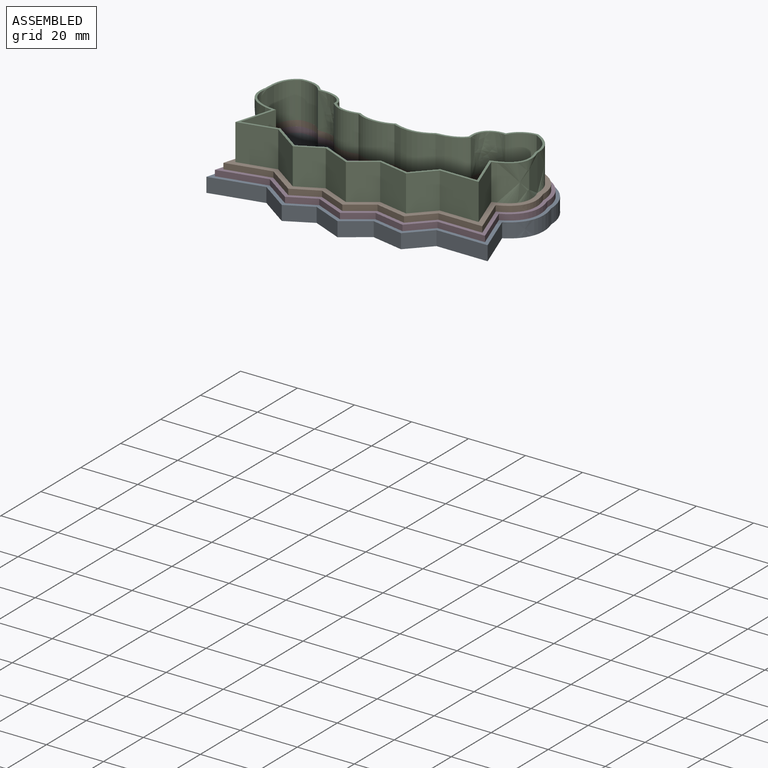
[diagram: assembled view]
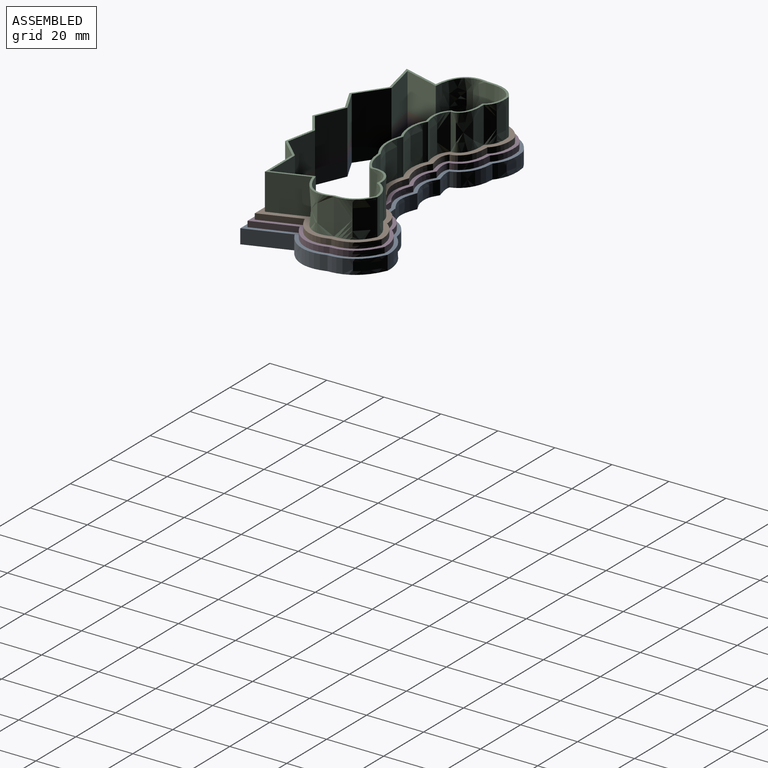
[diagram: assembled view, second angle]
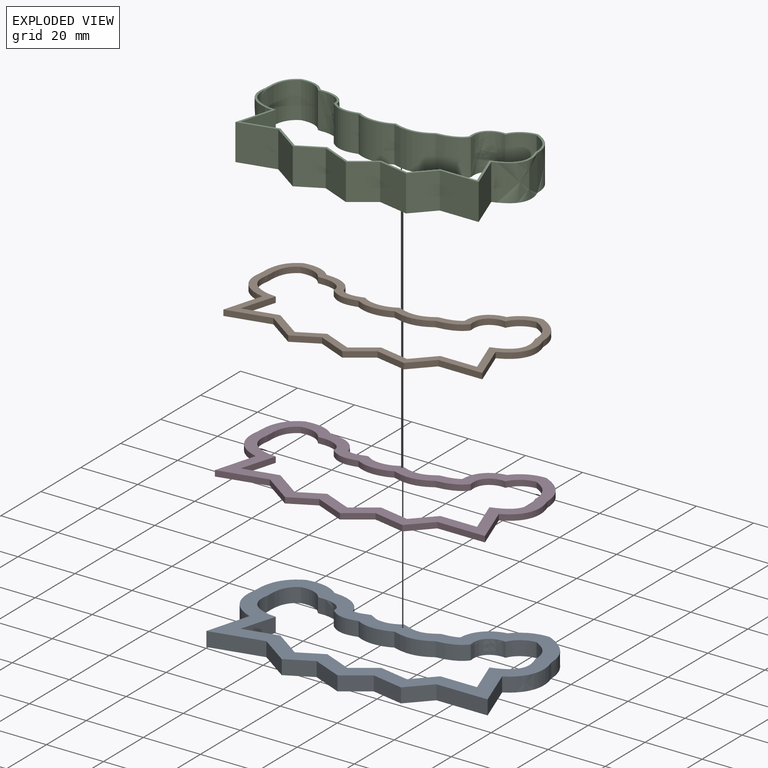
[diagram: exploded view]
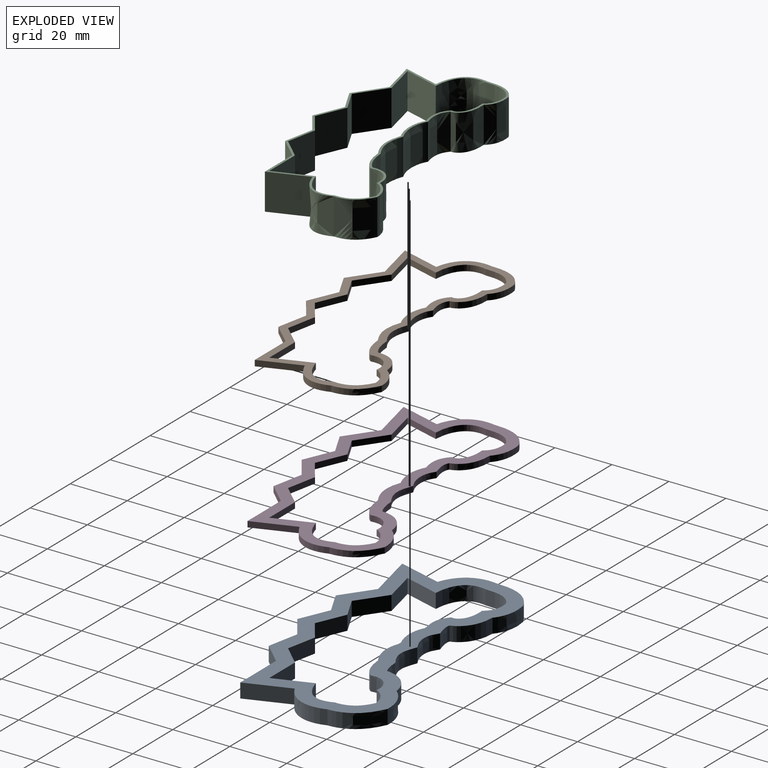
[diagram: exploded view, second angle]
ASSEMBLY  parts=4 mates=3
PART A: 46 faces, bbox 101.8x59.1x7.7 mm
  f0: plane 101.81x59.1mm, normal (0,0,1), area 1433.5mm2, adj f2,f3,f4,f5,f6,f7,f8,f9
  f1: plane 101.81x59.1mm, normal (0,0,-1), area 1433.5mm2, adj f2,f3,f4,f5,f6,f7,f8,f9
  f2: extruded ~15.41x5.08mm, area 81.3mm2, adj f0,f1,f3,f23
  f3: plane 18.12x5.08mm, normal (0.23,-0.97,0), area 94.5mm2, adj f0,f1,f2,f4
  f4: plane 10.59x7.46mm, normal (-0.58,-0.82,0), area 65.8mm2, adj f0,f1,f3,f5
  f5: plane 9x5.08mm, normal (0.46,-0.89,0), area 51.4mm2, adj f0,f1,f4,f6
  f6: plane 10.47x5.08mm, normal (-0.4,-0.92,0), area 57.9mm2, adj f0,f1,f5,f7
  f7: plane 8.51x5.97mm, normal (0.57,-0.82,0), area 52.8mm2, adj f0,f1,f6,f8
  f8: plane 11.12x5.08mm, normal (-0.2,-0.98,0), area 57.6mm2, adj f0,f1,f7,f9
  f9: plane 7.59x7.14mm, normal (0.73,-0.69,0), area 52.9mm2, adj f0,f1,f8,f10
  f10: plane 17.94x5.08mm, normal (0,-1,0), area 91.1mm2, adj f0,f1,f9,f11
  f11: plane 15.2x5.56mm, normal (0.94,0.34,0), area 82.2mm2, adj f0,f1,f10,f12
  f12: extruded ~15.83x7.08mm, area 95.2mm2, adj f0,f1,f11,f13
  f13: extruded ~13.95x10.21mm, area 93.2mm2, adj f0,f1,f12,f14
  f14: extruded ~11.48x5.08mm, area 64.8mm2, adj f0,f1,f13,f15
  f15: extruded ~10.07x9.54mm, area 76.7mm2, adj f0,f1,f14,f16
  f16: extruded ~5.93x5.08mm, area 30.9mm2, adj f0,f1,f15,f17
  f17: extruded ~12.22x5.08mm, area 65.3mm2, adj f0,f1,f16,f18
  f18: extruded ~11.49x5.08mm, area 62.2mm2, adj f0,f1,f17,f19
  f19: extruded ~5.94x5.08mm, area 30.7mm2, adj f0,f1,f18,f20
  f20: extruded ~11.42x7.03mm, area 72.8mm2, adj f0,f1,f19,f21
  f21: extruded ~11.67x5.08mm, area 63.1mm2, adj f0,f1,f20,f22
  f22: extruded ~14.8x8.11mm, area 91.6mm2, adj f0,f1,f21,f23
  f23: extruded ~14.72x9.12mm, area 96.1mm2, adj f0,f1,f2,f22
  f24: extruded ~12.45x5.08mm, area 65.9mm2, adj f0,f1,f25,f45
  f25: plane 12.03x5.08mm, normal (-0.23,0.97,0), area 62.7mm2, adj f0,f1,f24,f26
  f26: plane 9.93x6.99mm, normal (0.58,0.82,0), area 61.7mm2, adj f0,f1,f25,f27
  f27: plane 8.39x5.08mm, normal (-0.46,0.89,0), area 48mm2, adj f0,f1,f26,f28
  f28: plane 10.07x5.08mm, normal (0.4,0.92,0), area 55.7mm2, adj f0,f1,f27,f29
  f29: plane 7.97x5.59mm, normal (-0.57,0.82,0), area 49.5mm2, adj f0,f1,f28,f30
  f30: plane 10.49x5.08mm, normal (0.2,0.98,0), area 54.3mm2, adj f0,f1,f29,f31
  f31: plane 7.13x6.71mm, normal (-0.73,0.69,0), area 49.8mm2, adj f0,f1,f30,f32
  f32: plane 12.87x5.08mm, normal (0,1,0), area 65.4mm2, adj f0,f1,f31,f33
  f33: plane 13.01x5.08mm, normal (-0.94,-0.34,0), area 70.4mm2, adj f0,f1,f32,f34
  f34: extruded ~12.03x8.46mm, area 85mm2, adj f0,f1,f33,f35
  f35: extruded ~9.79x6.3mm, area 63.2mm2, adj f0,f1,f34,f36
  f36: extruded ~7.55x5.08mm, area 48.2mm2, adj f0,f1,f35,f37
  f37: extruded ~7.25x7.24mm, area 61.2mm2, adj f0,f1,f36,f38
  f38: extruded ~9.51x5.08mm, area 54.1mm2, adj f0,f1,f37,f39
  f39: extruded ~13.43x5.08mm, area 71.4mm2, adj f0,f1,f38,f40
  f40: extruded ~12.59x5.08mm, area 66.5mm2, adj f0,f1,f39,f41
  f41: extruded ~10.07x5.08mm, area 55.1mm2, adj f0,f1,f40,f42
  f42: extruded ~8.91x5.08mm, area 57.6mm2, adj f0,f1,f41,f43
  f43: extruded ~7.83x5.08mm, area 44.8mm2, adj f0,f1,f42,f44
  f44: extruded ~10.35x5.08mm, area 61.2mm2, adj f0,f1,f43,f45
  f45: extruded ~10.47x10.35mm, area 86.6mm2, adj f0,f1,f24,f44
PART B: 46 faces, bbox 96.1x52.9x4 mm
  f0: plane 96.06x52.93mm, normal (0,0,1), area 692.5mm2, adj f2,f3,f4,f5,f6,f7,f8,f9
  f1: plane 96.06x52.93mm, normal (0,0,-1), area 692.5mm2, adj f2,f3,f4,f5,f6,f7,f8,f9
  f2: extruded ~13.74x3.96mm, area 29.1mm2, adj f0,f1,f3,f23
  f3: plane 15.08x3.51mm, normal (0.23,-0.97,0), area 31.5mm2, adj f0,f1,f2,f4
  f4: plane 10.26x7.23mm, normal (-0.58,-0.82,0), area 25.5mm2, adj f0,f1,f3,f5
  f5: plane 8.69x4.49mm, normal (0.46,-0.89,0), area 19.9mm2, adj f0,f1,f4,f6
  f6: plane 10.27x4.42mm, normal (-0.4,-0.92,0), area 22.7mm2, adj f0,f1,f5,f7
  f7: plane 8.24x5.78mm, normal (0.57,-0.82,0), area 20.5mm2, adj f0,f1,f6,f8
  f8: plane 10.81x2.16mm, normal (-0.2,-0.98,0), area 22.4mm2, adj f0,f1,f7,f9
  f9: plane 7.36x6.93mm, normal (0.73,-0.69,0), area 20.5mm2, adj f0,f1,f8,f10
  f10: plane 15.4x2.03mm, normal (0,-1,0), area 31.3mm2, adj f0,f1,f9,f11
  f11: plane 13.98x5.11mm, normal (0.94,0.34,0), area 30.2mm2, adj f0,f1,f10,f12
  f12: extruded ~14.06x7.72mm, area 36mm2, adj f0,f1,f11,f13
  f13: extruded ~11.87x8.26mm, area 31.3mm2, adj f0,f1,f12,f14
  f14: extruded ~9.56x4.78mm, area 22.7mm2, adj f0,f1,f13,f15
  f15: extruded ~8.95x8.36mm, area 28mm2, adj f0,f1,f14,f16
  f16: extruded ~7.67x2.4mm, area 16.7mm2, adj f0,f1,f15,f17
  f17: extruded ~12.82x2.42mm, area 27.4mm2, adj f0,f1,f16,f18
  f18: extruded ~12.04x2.03mm, area 25.8mm2, adj f0,f1,f17,f19
  f19: extruded ~7.82x2.03mm, area 16.5mm2, adj f0,f1,f18,f20
  f20: extruded ~10.21x6.12mm, area 26.5mm2, adj f0,f1,f19,f21
  f21: extruded ~9.84x2.88mm, area 21.6mm2, adj f0,f1,f20,f22
  f22: extruded ~12.57x6.36mm, area 30.5mm2, adj f0,f1,f21,f23
  f23: extruded ~12.73x9.75mm, area 36.5mm2, adj f0,f1,f2,f22
  f24: extruded ~12.45x3.64mm, area 26.4mm2, adj f0,f1,f25,f45
  f25: plane 12.03x2.8mm, normal (-0.23,0.97,0), area 25.1mm2, adj f0,f1,f24,f26
  f26: plane 9.93x6.99mm, normal (0.58,0.82,0), area 24.7mm2, adj f0,f1,f25,f27
  f27: plane 8.39x4.34mm, normal (-0.46,0.89,0), area 19.2mm2, adj f0,f1,f26,f28
  f28: plane 10.07x4.34mm, normal (0.4,0.92,0), area 22.3mm2, adj f0,f1,f27,f29
  f29: plane 7.97x5.59mm, normal (-0.57,0.82,0), area 19.8mm2, adj f0,f1,f28,f30
  f30: plane 10.49x2.1mm, normal (0.2,0.98,0), area 21.7mm2, adj f0,f1,f29,f31
  f31: plane 7.13x6.71mm, normal (-0.73,0.69,0), area 19.9mm2, adj f0,f1,f30,f32
  f32: plane 12.87x2.03mm, normal (0,1,0), area 26.1mm2, adj f0,f1,f31,f33
  f33: plane 13.01x4.76mm, normal (-0.94,-0.34,0), area 28.1mm2, adj f0,f1,f32,f34
  f34: extruded ~12.03x8.46mm, area 34mm2, adj f0,f1,f33,f35
  f35: extruded ~9.79x6.3mm, area 25.3mm2, adj f0,f1,f34,f36
  f36: extruded ~7.55x4.9mm, area 19.3mm2, adj f0,f1,f35,f37
  f37: extruded ~7.25x7.24mm, area 24.5mm2, adj f0,f1,f36,f38
  f38: extruded ~9.51x4.06mm, area 21.7mm2, adj f0,f1,f37,f39
  f39: extruded ~13.43x2.47mm, area 28.6mm2, adj f0,f1,f38,f40
  f40: extruded ~12.59x2.03mm, area 26.6mm2, adj f0,f1,f39,f41
  f41: extruded ~10.07x2.57mm, area 22mm2, adj f0,f1,f40,f42
  f42: extruded ~8.91x4.67mm, area 23.1mm2, adj f0,f1,f41,f43
  f43: extruded ~7.83x2.93mm, area 17.9mm2, adj f0,f1,f42,f44
  f44: extruded ~10.35x4.62mm, area 24.5mm2, adj f0,f1,f43,f45
  f45: extruded ~10.47x10.35mm, area 34.6mm2, adj f0,f1,f24,f44
PART C: 46 faces, bbox 91.9x48.3x13.9 mm
  f0: plane 91.93x48.29mm, normal (0,0,1), area 202.8mm2, adj f2,f3,f4,f5,f6,f7,f8,f9
  f1: plane 91.93x48.29mm, normal (0,0,-1), area 202.8mm2, adj f2,f3,f4,f5,f6,f7,f8,f9
  f2: extruded ~12.79x12.7mm, area 169.2mm2, adj f0,f1,f3,f23
  f3: plane 12.94x12.7mm, normal (0.23,-0.97,0), area 168.8mm2, adj f0,f1,f2,f4
  f4: plane 12.7x10.03mm, normal (-0.58,-0.82,0), area 155.8mm2, adj f0,f1,f3,f5
  f5: plane 12.7x8.48mm, normal (0.46,-0.89,0), area 121.3mm2, adj f0,f1,f4,f6
  f6: plane 12.7x10.13mm, normal (-0.4,-0.92,0), area 140.1mm2, adj f0,f1,f5,f7
  f7: plane 12.7x8.05mm, normal (0.57,-0.82,0), area 125mm2, adj f0,f1,f6,f8
  f8: plane 12.7x10.58mm, normal (-0.2,-0.98,0), area 137.1mm2, adj f0,f1,f7,f9
  f9: plane 12.7x7.2mm, normal (0.73,-0.69,0), area 125.6mm2, adj f0,f1,f8,f10
  f10: plane 13.63x12.7mm, normal (0,-1,0), area 173.1mm2, adj f0,f1,f9,f11
  f11: plane 13.27x12.7mm, normal (0.94,0.34,0), area 179.5mm2, adj f0,f1,f10,f12
  f12: extruded ~12.7x12.66mm, area 216.4mm2, adj f0,f1,f11,f13
  f13: extruded ~12.7x10.42mm, area 169.2mm2, adj f0,f1,f12,f14
  f14: extruded ~12.7x8.17mm, area 126.1mm2, adj f0,f1,f13,f15
  f15: extruded ~12.7x7.81mm, area 159.9mm2, adj f0,f1,f14,f16
  f16: extruded ~12.7x8.95mm, area 125.4mm2, adj f0,f1,f15,f17
  f17: extruded ~13.25x12.7mm, area 176.4mm2, adj f0,f1,f16,f18
  f18: extruded ~12.7x12.42mm, area 164.7mm2, adj f0,f1,f17,f19
  f19: extruded ~12.7x9.33mm, area 126.2mm2, adj f0,f1,f18,f20
  f20: extruded ~12.7x9.28mm, area 151.1mm2, adj f0,f1,f19,f21
  f21: extruded ~12.7x8.47mm, area 119mm2, adj f0,f1,f20,f22
  f22: extruded ~12.7x11.01mm, area 164.4mm2, adj f0,f1,f21,f23
  f23: extruded ~12.7x11.11mm, area 220mm2, adj f0,f1,f2,f22
  f24: extruded ~12.7x12.45mm, area 164.7mm2, adj f0,f1,f25,f45
  f25: plane 12.7x12.03mm, normal (-0.23,0.97,0), area 156.8mm2, adj f0,f1,f24,f26
  f26: plane 12.7x9.93mm, normal (0.58,0.82,0), area 154.3mm2, adj f0,f1,f25,f27
  f27: plane 12.7x8.39mm, normal (-0.46,0.89,0), area 120mm2, adj f0,f1,f26,f28
  f28: plane 12.7x10.07mm, normal (0.4,0.92,0), area 139.2mm2, adj f0,f1,f27,f29
  f29: plane 12.7x7.97mm, normal (-0.57,0.82,0), area 123.7mm2, adj f0,f1,f28,f30
  f30: plane 12.7x10.49mm, normal (0.2,0.98,0), area 135.9mm2, adj f0,f1,f29,f31
  f31: plane 12.7x7.13mm, normal (-0.73,0.69,0), area 124.4mm2, adj f0,f1,f30,f32
  f32: plane 12.87x12.7mm, normal (0,1,0), area 163.4mm2, adj f0,f1,f31,f33
  f33: plane 13.01x12.7mm, normal (-0.94,-0.34,0), area 175.9mm2, adj f0,f1,f32,f34
  f34: extruded ~12.7x12.03mm, area 212.6mm2, adj f0,f1,f33,f35
  f35: extruded ~12.7x9.79mm, area 157.9mm2, adj f0,f1,f34,f36
  f36: extruded ~12.7x7.55mm, area 120.5mm2, adj f0,f1,f35,f37
  f37: extruded ~12.7x7.25mm, area 153.1mm2, adj f0,f1,f36,f38
  f38: extruded ~12.7x9.51mm, area 135.4mm2, adj f0,f1,f37,f39
  f39: extruded ~13.43x12.7mm, area 178.5mm2, adj f0,f1,f38,f40
  f40: extruded ~12.7x12.59mm, area 166.3mm2, adj f0,f1,f39,f41
  f41: extruded ~12.7x10.07mm, area 137.7mm2, adj f0,f1,f40,f42
  f42: extruded ~12.7x8.91mm, area 144.1mm2, adj f0,f1,f41,f43
  f43: extruded ~12.7x7.83mm, area 112mm2, adj f0,f1,f42,f44
  f44: extruded ~12.7x10.35mm, area 153.1mm2, adj f0,f1,f43,f45
  f45: extruded ~12.7x10.47mm, area 216.4mm2, adj f0,f1,f24,f44
PART D: 46 faces, bbox 98.7x55.7x4.1 mm
  f0: plane 98.66x55.73mm, normal (0,0,1), area 1056.8mm2, adj f2,f3,f4,f5,f6,f7,f8,f9
  f1: plane 98.66x55.73mm, normal (0,0,-1), area 1056.8mm2, adj f2,f3,f4,f5,f6,f7,f8,f9
  f2: extruded ~14.54x4.15mm, area 30.7mm2, adj f0,f1,f3,f23
  f3: plane 16.6x3.86mm, normal (0.23,-0.97,0), area 34.6mm2, adj f0,f1,f2,f4
  f4: plane 10.43x7.34mm, normal (-0.58,-0.82,0), area 25.9mm2, adj f0,f1,f3,f5
  f5: plane 8.84x4.57mm, normal (0.46,-0.89,0), area 20.2mm2, adj f0,f1,f4,f6
  f6: plane 10.37x4.46mm, normal (-0.4,-0.92,0), area 22.9mm2, adj f0,f1,f5,f7
  f7: plane 8.38x5.88mm, normal (0.57,-0.82,0), area 20.8mm2, adj f0,f1,f6,f8
  f8: plane 10.96x2.19mm, normal (-0.2,-0.98,0), area 22.7mm2, adj f0,f1,f7,f9
  f9: plane 7.47x7.03mm, normal (0.73,-0.69,0), area 20.9mm2, adj f0,f1,f8,f10
  f10: plane 16.67x2.03mm, normal (0,-1,0), area 33.9mm2, adj f0,f1,f9,f11
  f11: plane 14.56x5.32mm, normal (0.94,0.34,0), area 31.5mm2, adj f0,f1,f10,f12
  f12: extruded ~14.98x7.39mm, area 37.1mm2, adj f0,f1,f11,f13
  f13: extruded ~12.91x9.24mm, area 34.4mm2, adj f0,f1,f12,f14
  f14: extruded ~10.53x4.82mm, area 24.4mm2, adj f0,f1,f13,f15
  f15: extruded ~9.59x8.96mm, area 29.5mm2, adj f0,f1,f14,f16
  f16: extruded ~6.78x2.03mm, area 14.3mm2, adj f0,f1,f15,f17
  f17: extruded ~12.52x2.4mm, area 26.9mm2, adj f0,f1,f16,f18
  f18: extruded ~11.76x2.03mm, area 25.2mm2, adj f0,f1,f17,f19
  f19: extruded ~6.84x2.03mm, area 14.3mm2, adj f0,f1,f18,f20
  f20: extruded ~10.84x6.64mm, area 27.9mm2, adj f0,f1,f19,f21
  f21: extruded ~10.77x2.88mm, area 23.3mm2, adj f0,f1,f20,f22
  f22: extruded ~13.68x7.24mm, area 33.4mm2, adj f0,f1,f21,f23
  f23: extruded ~13.77x9.43mm, area 37.5mm2, adj f0,f1,f2,f22
  f24: extruded ~12.45x3.64mm, area 26.4mm2, adj f0,f1,f25,f45
  f25: plane 12.03x2.8mm, normal (-0.23,0.97,0), area 25.1mm2, adj f0,f1,f24,f26
  f26: plane 9.93x6.99mm, normal (0.58,0.82,0), area 24.7mm2, adj f0,f1,f25,f27
  f27: plane 8.39x4.34mm, normal (-0.46,0.89,0), area 19.2mm2, adj f0,f1,f26,f28
  f28: plane 10.07x4.34mm, normal (0.4,0.92,0), area 22.3mm2, adj f0,f1,f27,f29
  f29: plane 7.97x5.59mm, normal (-0.57,0.82,0), area 19.8mm2, adj f0,f1,f28,f30
  f30: plane 10.49x2.1mm, normal (0.2,0.98,0), area 21.7mm2, adj f0,f1,f29,f31
  f31: plane 7.13x6.71mm, normal (-0.73,0.69,0), area 19.9mm2, adj f0,f1,f30,f32
  f32: plane 12.87x2.03mm, normal (0,1,0), area 26.1mm2, adj f0,f1,f31,f33
  f33: plane 13.01x4.76mm, normal (-0.94,-0.34,0), area 28.1mm2, adj f0,f1,f32,f34
  f34: extruded ~12.03x8.46mm, area 34mm2, adj f0,f1,f33,f35
  f35: extruded ~9.79x6.3mm, area 25.3mm2, adj f0,f1,f34,f36
  f36: extruded ~7.55x4.9mm, area 19.3mm2, adj f0,f1,f35,f37
  f37: extruded ~7.25x7.24mm, area 24.5mm2, adj f0,f1,f36,f38
  f38: extruded ~9.51x4.06mm, area 21.7mm2, adj f0,f1,f37,f39
  f39: extruded ~13.43x2.47mm, area 28.6mm2, adj f0,f1,f38,f40
  f40: extruded ~12.59x2.03mm, area 26.6mm2, adj f0,f1,f39,f41
  f41: extruded ~10.07x2.57mm, area 22mm2, adj f0,f1,f40,f42
  f42: extruded ~8.91x4.67mm, area 23.1mm2, adj f0,f1,f41,f43
  f43: extruded ~7.83x2.93mm, area 17.9mm2, adj f0,f1,f42,f44
  f44: extruded ~10.35x4.62mm, area 24.5mm2, adj f0,f1,f43,f45
  f45: extruded ~10.47x10.35mm, area 34.6mm2, adj f0,f1,f24,f44
PLACE A t=(-41.15,-54.75,-7.11)mm
PLACE B at identity
PLACE C t=(-111.8,-20.48,2.03)mm
PLACE D t=(-171.44,22.83,-2.03)mm
MATE fastened D.f0 <-> B.f1  axis (0,0,1) through (-127.5,-22.98,0)mm
MATE fastened C.f1 <-> B.f0  axis (0,0,1) through (-127.5,-22.98,2.03)mm
MATE fastened A.f0 <-> D.f1  axis (0,0,1) through (-127.5,-22.98,-2.03)mm
